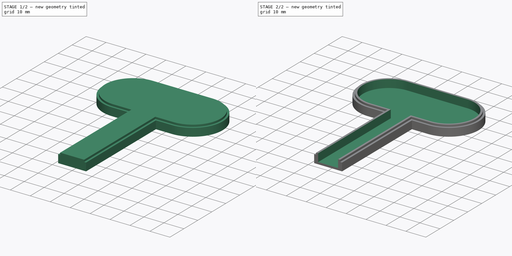
[diagram: build sequence overview — one tinted view per stage of 2, left to right]
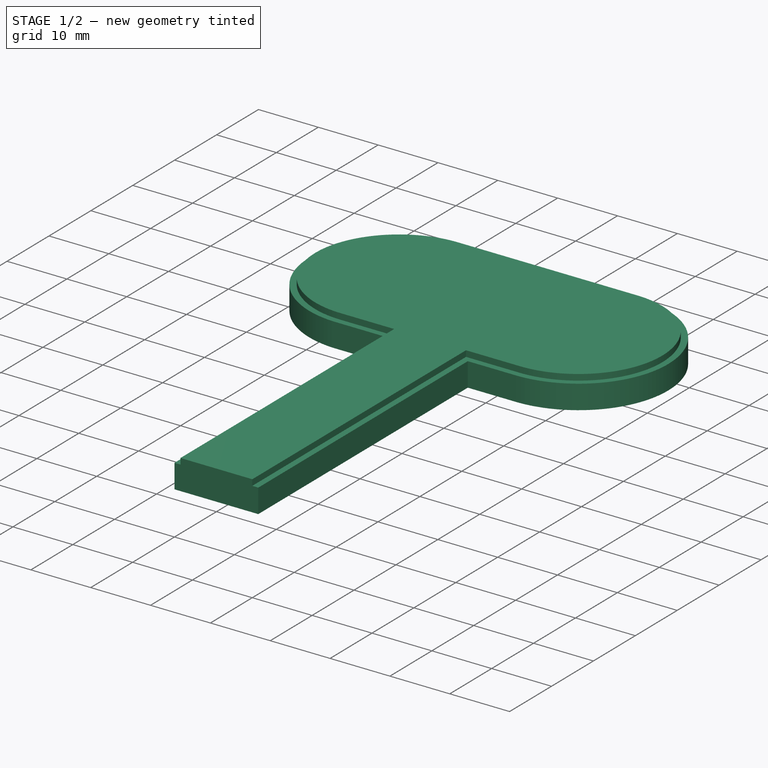
[diagram: stage 1 of 2 — iso view after this stage's code; geometry added in this stage tinted green]
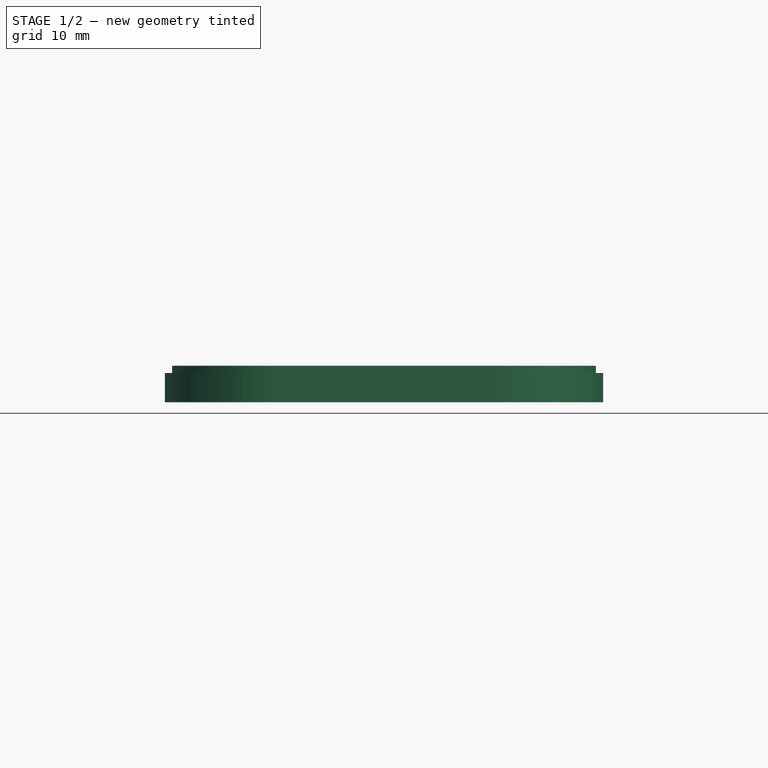
[diagram: stage 1 of 2 — front view after this stage's code; geometry added in this stage tinted green]
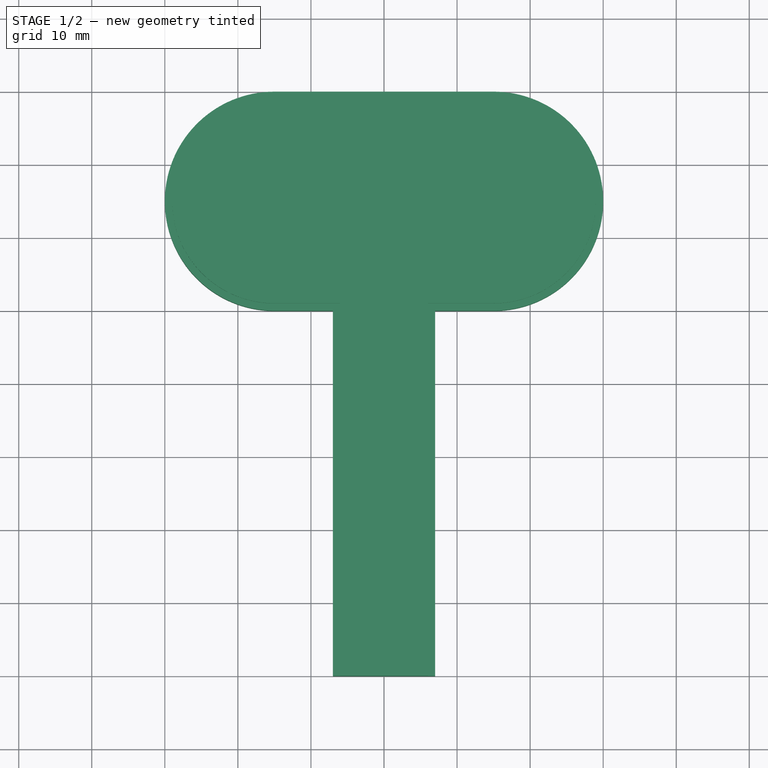
[diagram: stage 1 of 2 — top view after this stage's code; geometry added in this stage tinted green]
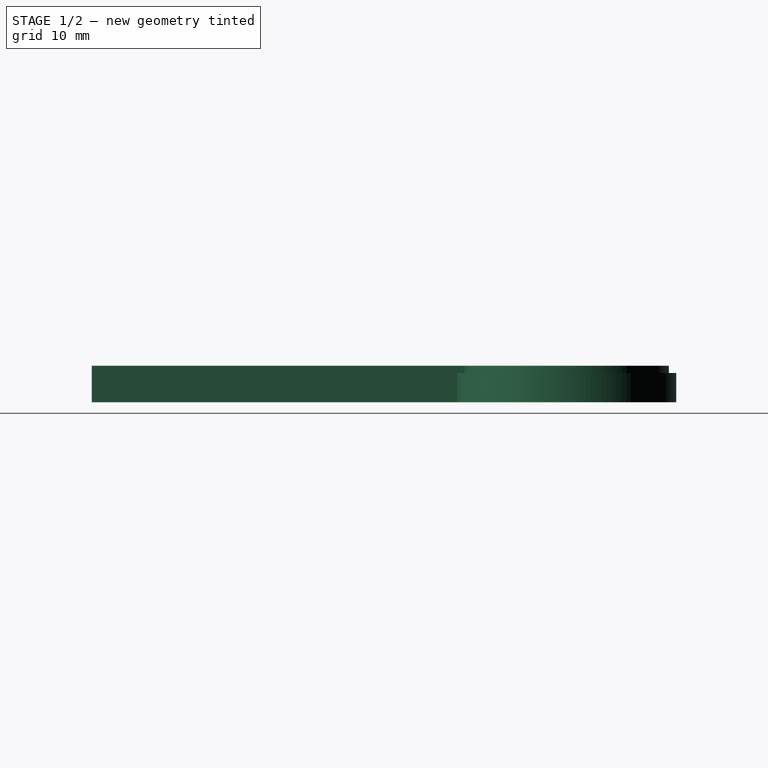
[diagram: stage 1 of 2 — right view after this stage's code; geometry added in this stage tinted green]
FCSTD DOCUMENT  (FreeCAD 0.19R24291 (Git))
Label: double_probe_small_cover
License: All rights reserved
LicenseURL: http://en.wikipedia.org/wiki/All_rights_reserved
objects: Sketcher::SketchObject×3, PartDesign::Pad×2, PartDesign::Pocket×1, PartDesign::Body×1
note: 10 computed .brp shape members not serialized (recipe doc carries the construction recipe); baked Part::Feature solids carry a one-line shape summary decoded from their .brp

FEATURE [Sketcher::SketchObject] Sketch
  FullyConstrained = true
  MapMode = 5
  Support = -> [XY_Plane]
  sketch-geometry (8):
    g0: LineSegment StartX=-7 StartY=-50 StartZ=0 EndX=7 EndY=-50 EndZ=0
    g1: LineSegment StartX=7 StartY=-50 StartZ=0 EndX=7 EndY=0 EndZ=0
    g2: LineSegment StartX=7 StartY=0 StartZ=0 EndX=15 EndY=0 EndZ=0
    g3: ArcOfCircle CenterX=15 CenterY=15 CenterZ=0 NormalX=0 NormalY=0 NormalZ=1 AngleXU=0 Radius=15 StartAngle=4.71239 EndAngle=7.85398
    g4: LineSegment StartX=15 StartY=30 StartZ=0 EndX=-15 EndY=30 EndZ=0
    g5: ArcOfCircle CenterX=-15 CenterY=15 CenterZ=0 NormalX=0 NormalY=0 NormalZ=1 AngleXU=0 Radius=15 StartAngle=1.5708 EndAngle=4.71239
    g6: LineSegment StartX=-15 StartY=0 StartZ=0 EndX=-7 EndY=0 EndZ=0
    g7: LineSegment StartX=-7 StartY=0 StartZ=0 EndX=-7 EndY=-50 EndZ=0
  constraints (21):
    c: Coincident(g0,g1)
    c: PointOnObject(g1,g-1)
    c: Vertical(g1)
    c: Coincident(g1,g2)
    c: PointOnObject(g2,g-1)
    c: Tangent(g2,g3) = -1.5708
    c: Tangent(g3,g4) = -1.5708
    c: Tangent(g4,g5) = -1.5708
    c: PointOnObject(g5,g-1)
    c: Coincident(g5,g6)
    c: PointOnObject(g6,g-1)
    c: Coincident(g6,g7)
    c: Coincident(g7,g0)
    c: Vertical(g7)
    c: Symmetric(g5,g3,g-2)
    c: Symmetric(g0,g0,g-2)
    c: Radius(g3) = 15
    c: DistanceX(g5,g3) = 30
    c: DistanceY(g7,g7) = 50
    c: DistanceX(g0,g0) = 14
    c: Tangent(g5,g6) = -1.5708
FEATURE [PartDesign::Pad] Pad
  Direction = (1,1,1)
  Length = 4
  Length2 = 100
  Profile = -> Sketch
  Refine = true
  Type = 0
FEATURE [Sketcher::SketchObject] Sketch001
  FullyConstrained = true
  MapMode = 5
  Support = -> [XY_Plane]
  sketch-geometry (8):
    g0: LineSegment StartX=-6 StartY=-50 StartZ=0 EndX=6 EndY=-50 EndZ=0
    g1: LineSegment StartX=6 StartY=-50 StartZ=0 EndX=6 EndY=1 EndZ=0
    g2: LineSegment StartX=6 StartY=1 StartZ=0 EndX=15 EndY=1 EndZ=0
    g3: ArcOfCircle CenterX=15 CenterY=15 CenterZ=0 NormalX=0 NormalY=0 NormalZ=1 AngleXU=0 Radius=14 StartAngle=4.71239 EndAngle=7.85398
    g4: LineSegment StartX=15 StartY=29 StartZ=0 EndX=-15 EndY=29 EndZ=0
    g5: ArcOfCircle CenterX=-15 CenterY=15 CenterZ=0 NormalX=0 NormalY=0 NormalZ=1 AngleXU=0 Radius=14 StartAngle=1.5708 EndAngle=4.71239
    g6: LineSegment StartX=-15 StartY=1 StartZ=0 EndX=-6 EndY=1 EndZ=0
    g7: LineSegment StartX=-6 StartY=1 StartZ=0 EndX=-6 EndY=-50 EndZ=0
  constraints (22):
    c: Coincident(g0,g1)
    c: Vertical(g1)
    c: Tangent(g3,g4) = -1.5708
    c: Tangent(g4,g5) = -1.5708
    c: Coincident(g7,g0)
    c: Vertical(g7)
    c: Symmetric(g5,g3,g-2)
    c: Symmetric(g0,g0,g-2)
    c: Radius(g3) = 14
    c: DistanceX(g5,g3) = 30
    c: DistanceY(g7,g7) = 51
    c: DistanceX(g0,g0) = 12
    c: Coincident(g6,g5)
    c: Coincident(g2,g3)
    c: Coincident(g2,g1)
    c: Coincident(g6,g7)
    c: Horizontal(g6)
    c: Horizontal(g2)
    c: Horizontal(g4)
    c: DistanceY(g-1,g6) = 1
    c: Tangent(g5,g6) = -1.5708
    c: Equal(g6,g2)
FEATURE [PartDesign::Pad] Pad001
  BaseFeature = -> Pad
  Direction = (1,1,1)
  Length = 5
  Length2 = 100
  Profile = -> Sketch001
  Refine = true
  Type = 0
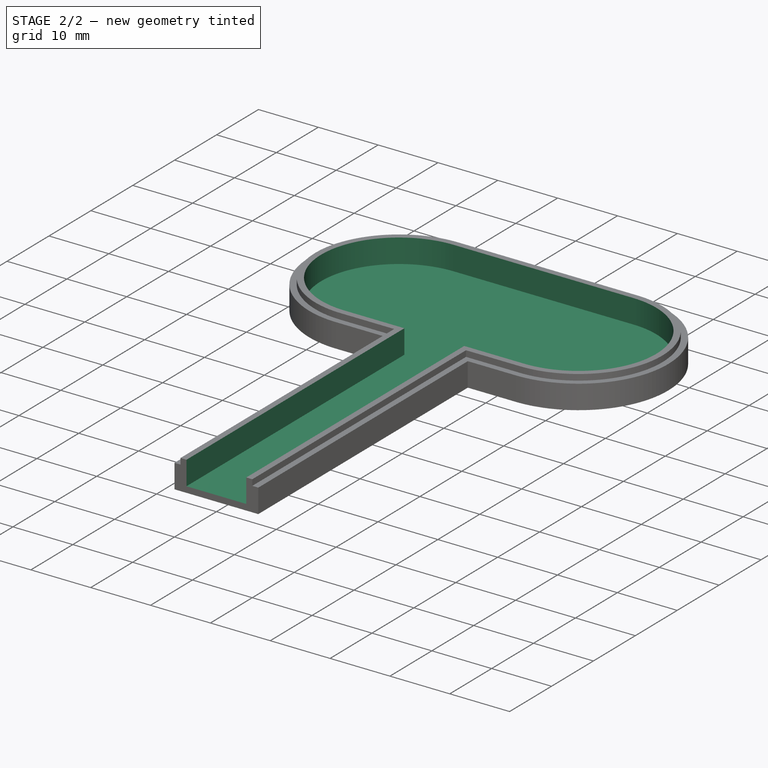
[diagram: stage 2 of 2 — iso view after this stage's code; geometry added in this stage tinted green]
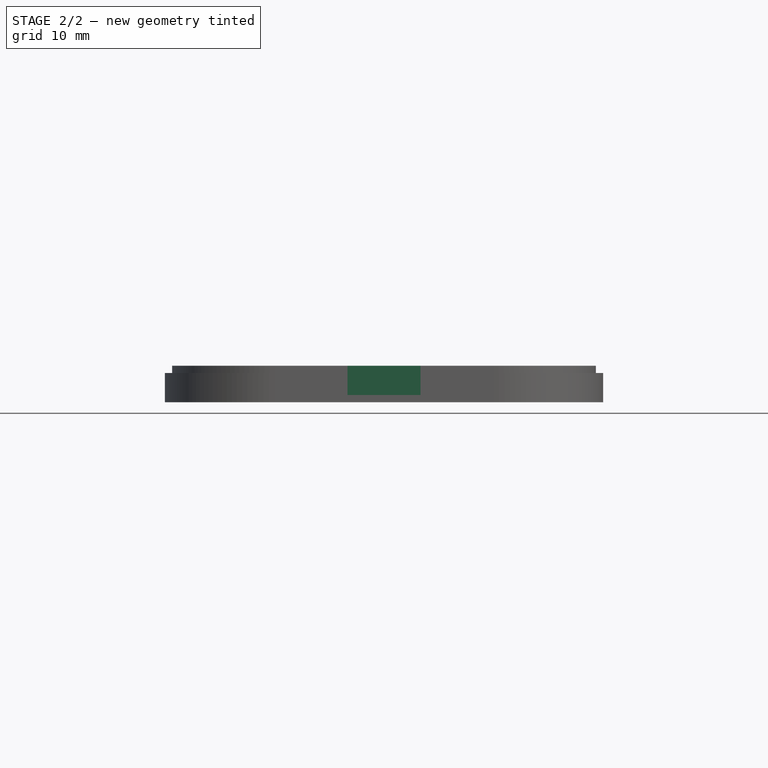
[diagram: stage 2 of 2 — front view after this stage's code; geometry added in this stage tinted green]
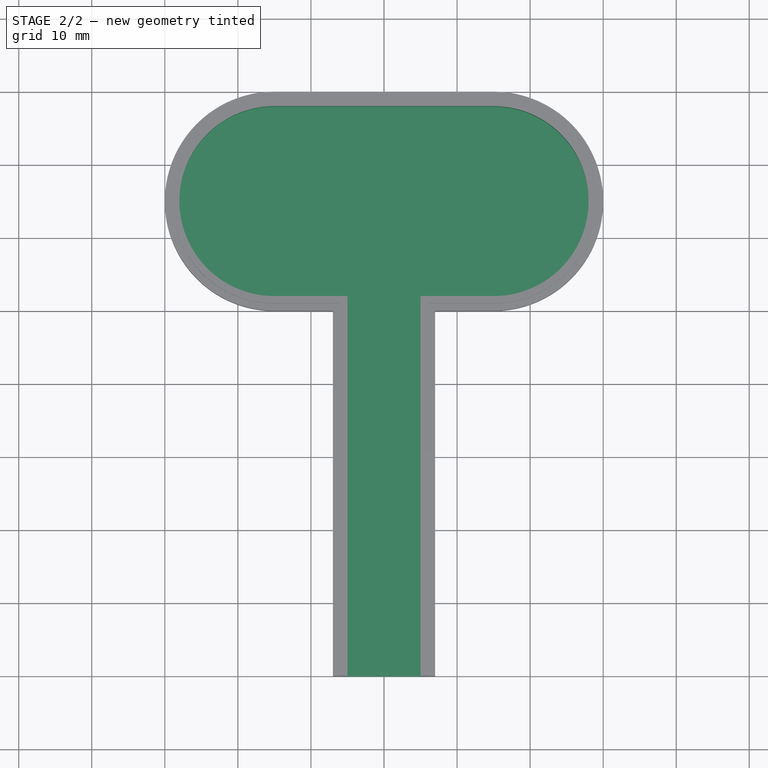
[diagram: stage 2 of 2 — top view after this stage's code; geometry added in this stage tinted green]
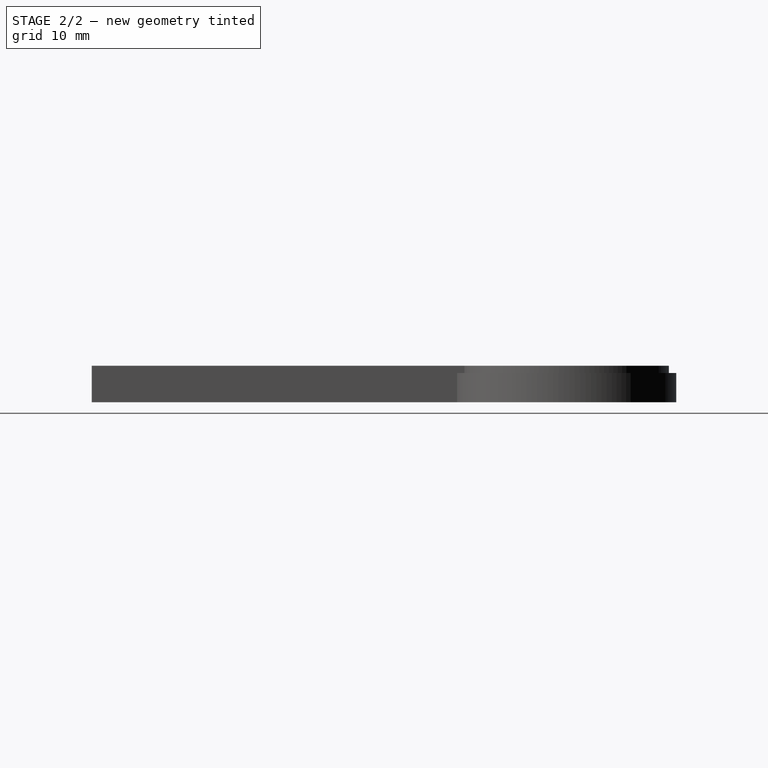
[diagram: stage 2 of 2 — right view after this stage's code; geometry added in this stage tinted green]
FEATURE [Sketcher::SketchObject] Sketch002
  AttachmentOffset = pos=(0,0,5) rot=(0,0,1;0rad)
  FullyConstrained = true
  MapMode = 5
  Placement = pos=(0,0,5) rot=(0,0,1;0rad)
  Support = -> [XY_Plane]
  sketch-geometry (8):
    g0: LineSegment StartX=-5 StartY=-50 StartZ=0 EndX=5 EndY=-50 EndZ=0
    g1: LineSegment StartX=5 StartY=-50 StartZ=0 EndX=5 EndY=2 EndZ=0
    g2: LineSegment StartX=5 StartY=2 StartZ=0 EndX=15 EndY=2 EndZ=0
    g3: ArcOfCircle CenterX=15 CenterY=15 CenterZ=0 NormalX=0 NormalY=0 NormalZ=1 AngleXU=0 Radius=13 StartAngle=4.71239 EndAngle=7.85398
    g4: LineSegment StartX=15 StartY=28 StartZ=0 EndX=-15 EndY=28 EndZ=0
    g5: ArcOfCircle CenterX=-15 CenterY=15 CenterZ=0 NormalX=0 NormalY=0 NormalZ=1 AngleXU=0 Radius=13 StartAngle=1.5708 EndAngle=4.71239
    g6: LineSegment StartX=-15 StartY=2 StartZ=0 EndX=-5 EndY=2 EndZ=0
    g7: LineSegment StartX=-5 StartY=2 StartZ=0 EndX=-5 EndY=-50 EndZ=0
  constraints (22):
    c: Coincident(g0,g1)
    c: Vertical(g1)
    c: Tangent(g3,g4) = -1.5708
    c: Tangent(g4,g5) = -1.5708
    c: Coincident(g7,g0)
    c: Vertical(g7)
    c: Symmetric(g5,g3,g-2)
    c: Symmetric(g0,g0,g-2)
    c: Radius(g3) = 13
    c: DistanceX(g5,g3) = 30
    c: DistanceY(g7,g7) = 52
    c: DistanceX(g0,g0) = 10
    c: Coincident(g6,g5)
    c: Coincident(g2,g3)
    c: Coincident(g2,g1)
    c: Coincident(g6,g7)
    c: Horizontal(g6)
    c: Horizontal(g2)
    c: Horizontal(g4)
    c: DistanceY(g-1,g6) = 2
    c: Tangent(g5,g6) = -1.5708
    c: Equal(g6,g2)
FEATURE [PartDesign::Pocket] Pocket
  BaseFeature = -> Pad001
  Length = 4
  Length2 = 100
  Profile = -> Sketch002
  Refine = true
  Type = 0
FEATURE [PartDesign::Body] Body
  Group = -> [Sketch,Pad,Sketch001,Pad001,Sketch002,Pocket]
  Origin = -> Origin
  Tip = -> Pocket
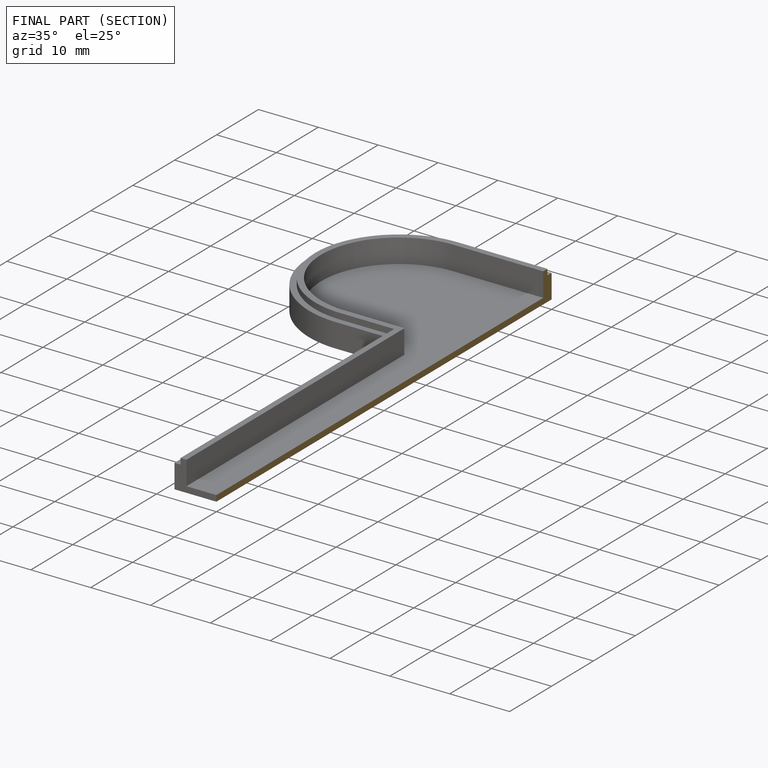
[diagram: finished part — half-section view (interior)]
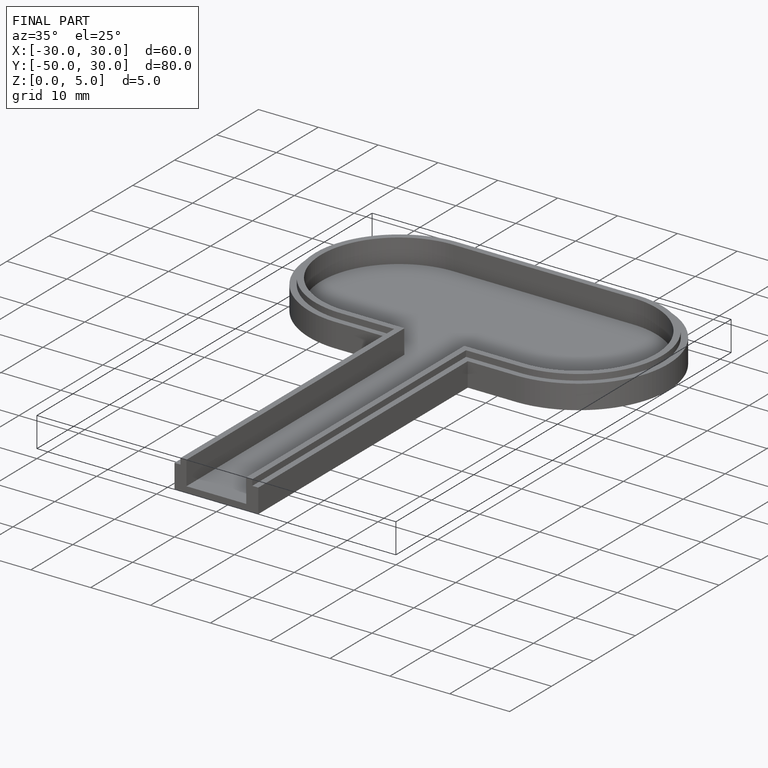
[diagram: finished part — iso view with bounding-box wireframe]
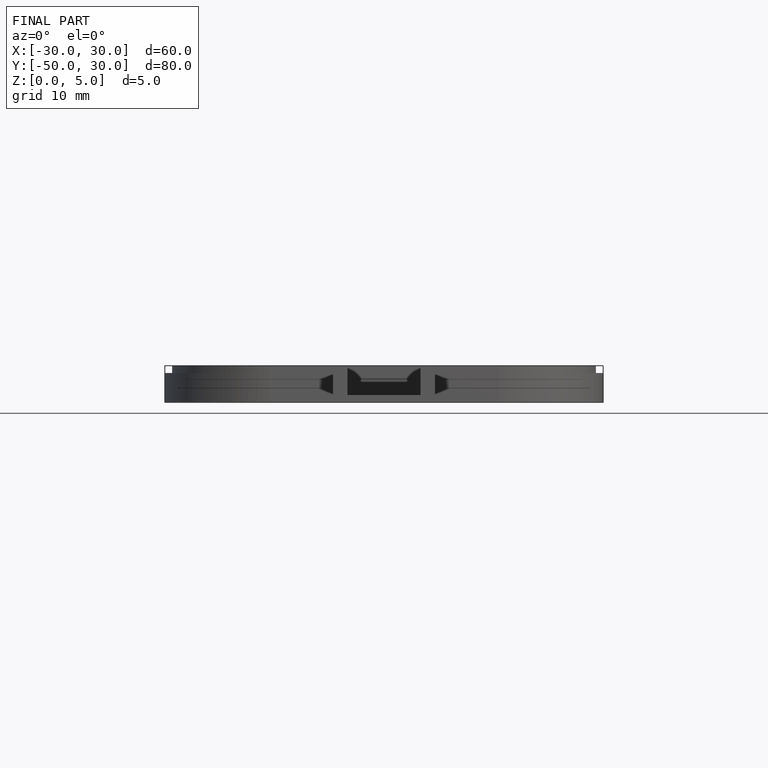
[diagram: finished part — front view with bounding-box wireframe]
